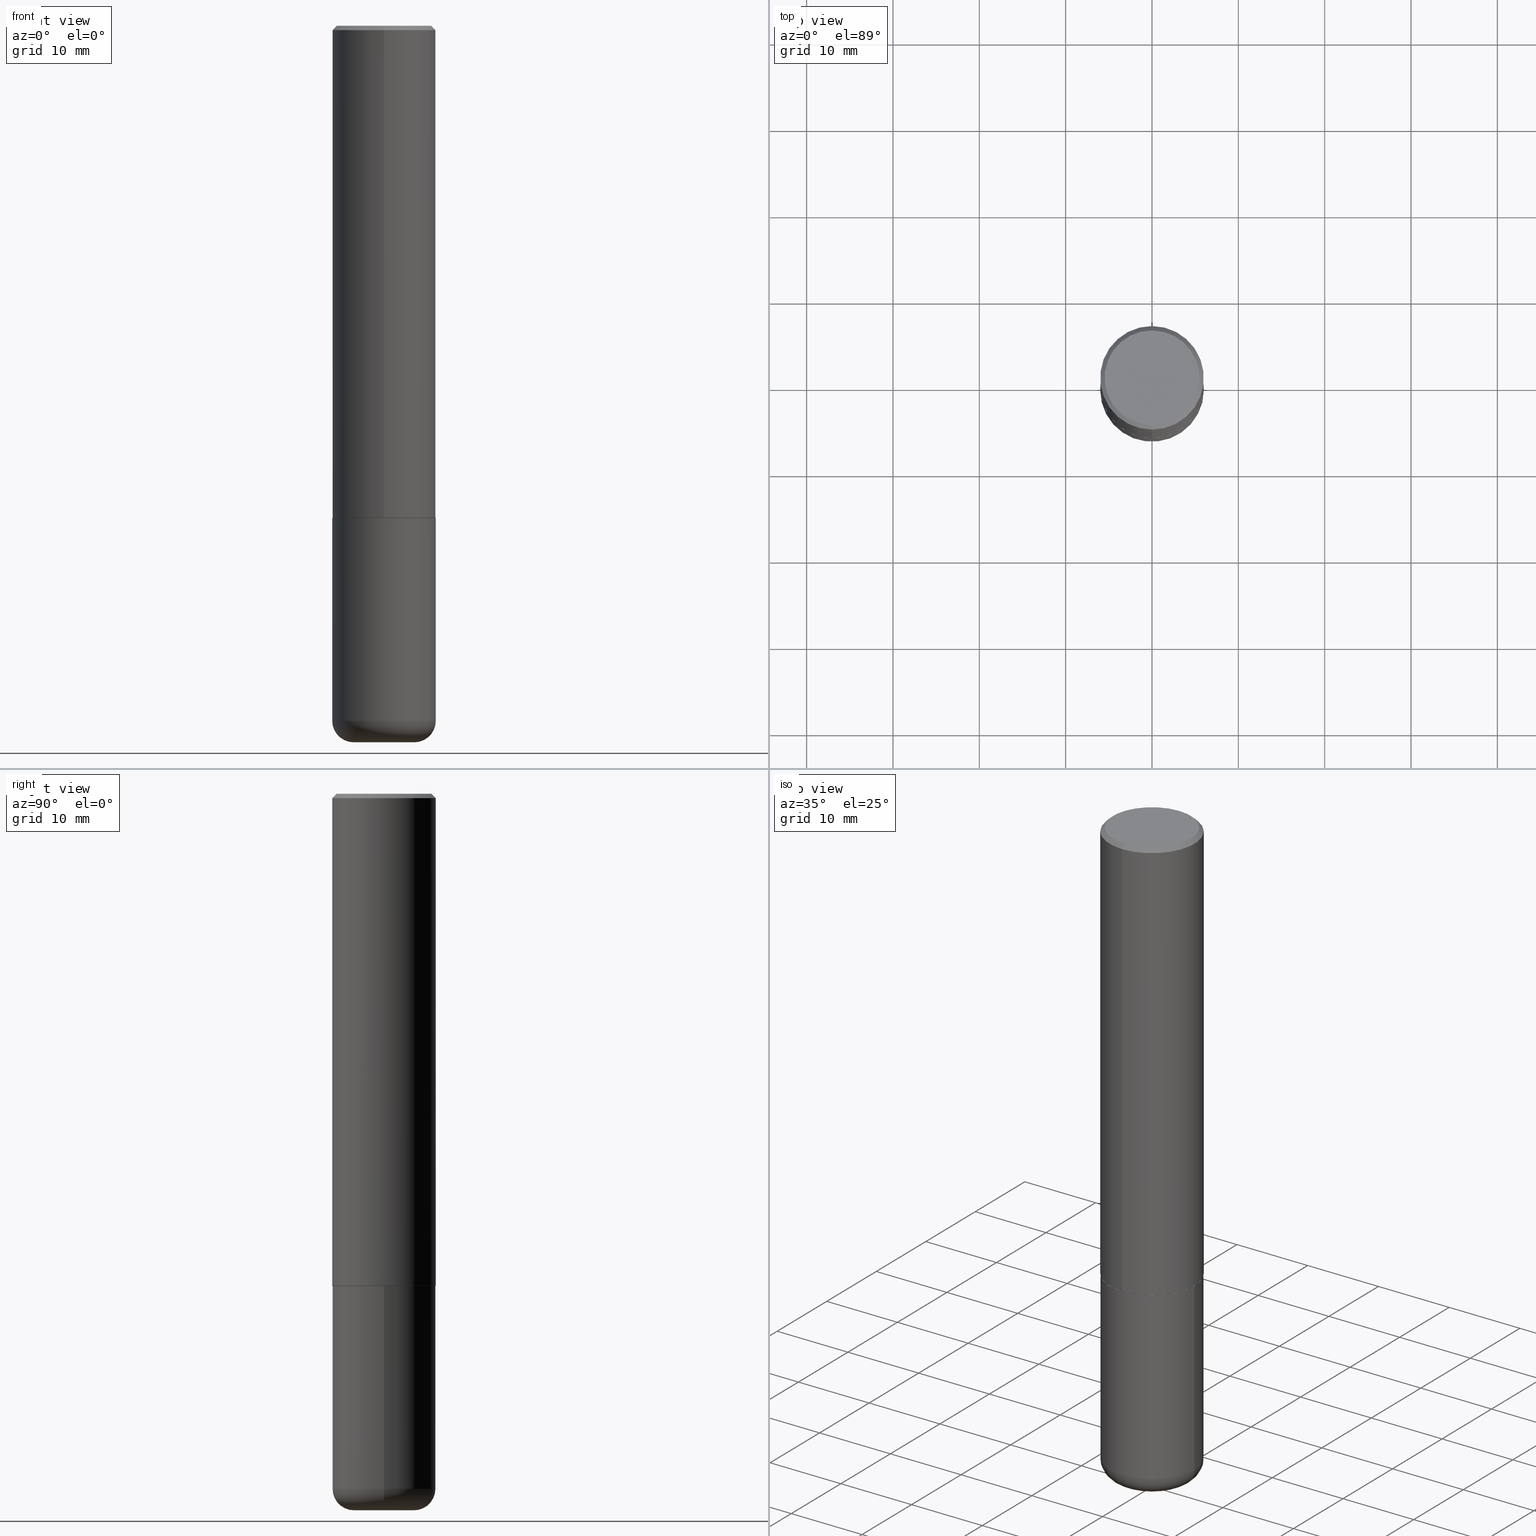
[diagram: canonical four-view strip — front | top / right | iso, engineering-drawing reading convention]
A machine part, canonical four-view strip (front | top / right | iso — engineering-drawing reading convention). The complete STEP part file that produces these views, byte-faithful:
ISO-10303-21;
HEADER;
FILE_DESCRIPTION (( 'STEP AP203' ),
    '1' );
FILE_NAME ('47170.STEP',
    '2024-03-06T01:13:15',
    ( '' ),
    ( '' ),
    'SwSTEP 2.0',
    'SolidWorks 2023',
    '' );
FILE_SCHEMA (( 'CONFIG_CONTROL_DESIGN' ));
ENDSEC;

DATA;
#1 = COORDINATED_UNIVERSAL_TIME_OFFSET ( 5, 0, .BEHIND. ) ;
#2 = EDGE_LOOP ( 'NONE', ( #9, #322, #370, #172 ) ) ;
#3 = EDGE_CURVE ( 'NONE', #26, #408, #160, .T. ) ;
#4 = CIRCLE ( 'NONE', #185, 0.09840000000000014013 ) ;
#5 = FACE_OUTER_BOUND ( 'NONE', #232, .T. ) ;
#6 = DATE_AND_TIME ( #164, #304 ) ;
#7 = AXIS2_PLACEMENT_3D ( 'NONE', #327, #117, #329 ) ;
#8 = LOCAL_TIME ( 20, 13, 14.00000000000000000, #166 ) ;
#9 = ORIENTED_EDGE ( 'NONE', *, *, #223, .T. ) ;
#10 = DATE_AND_TIME ( #71, #395 ) ;
#11 = PERSON_AND_ORGANIZATION ( #389, #79 ) ;
#12 = ORIENTED_EDGE ( 'NONE', *, *, #171, .T. ) ;
#13 = EDGE_CURVE ( 'NONE', #233, #282, #202, .T. ) ;
#14 = ORIENTED_EDGE ( 'NONE', *, *, #397, .T. ) ;
#15 = CIRCLE ( 'NONE', #344, 0.2352000000000000202 ) ;
#16 = ORIENTED_EDGE ( 'NONE', *, *, #27, .T. ) ;
#17 = DIRECTION ( 'NONE',  ( -1.000000000000000000, 6.982962677686265922E-15, -4.876176775795935793E-29 ) ) ;
#18 = ORIENTED_EDGE ( 'NONE', *, *, #363, .T. ) ;
#19 = DATE_TIME_ROLE ( 'creation_date' ) ;
#20 = AXIS2_PLACEMENT_3D ( 'NONE', #324, #157, #108 ) ;
#21 = DIRECTION ( 'NONE',  ( -6.982962677686265922E-15, -1.000000000000000000, 3.494732472144603410E-15 ) ) ;
#22 = ORIENTED_EDGE ( 'NONE', *, *, #99, .F. ) ;
#23 = UNCERTAINTY_MEASURE_WITH_UNIT (LENGTH_MEASURE( 1.000000000000000082E-05 ), #383, 'distance_accuracy_value', 'NONE');
#24 = FACE_OUTER_BOUND ( 'NONE', #131, .T. ) ;
#25 = PRODUCT_DEFINITION ( 'UNKNOWN', '', #32, #323 ) ;
#26 = VERTEX_POINT ( 'NONE', #83 ) ;
#27 = EDGE_CURVE ( 'NONE', #85, #408, #326, .T. ) ;
#28 = PLANE ( 'NONE',  #210 ) ;
#29 = EDGE_LOOP ( 'NONE', ( #346, #104, #16, #393 ) ) ;
#30 = CARTESIAN_POINT ( 'NONE',  ( 5.480338671844748839E-29, -7.839034408267561952E-15, -2.243100000000000094 ) ) ;
#31 = AXIS2_PLACEMENT_3D ( 'NONE', #84, #335, #207 ) ;
#32 = PRODUCT_DEFINITION_FORMATION_WITH_SPECIFIED_SOURCE ( 'ANY', '', #86, .NOT_KNOWN. ) ;
#33 = CARTESIAN_POINT ( 'NONE',  ( 1.674749228186611702E-15, 0.2351999999999921653, -2.244100000000000872 ) ) ;
#34 = CARTESIAN_POINT ( 'NONE',  ( 5.487876547960065873E-29, -7.835233272497903917E-15, -2.244100000000000428 ) ) ;
#35 = VECTOR ( 'NONE', #188, 39.37007874015748143 ) ;
#36 = CARTESIAN_POINT ( 'NONE',  ( 0.1378000000000000058, -1.237136582792291392E-14, -3.267700000000000049 ) ) ;
#37 = CARTESIAN_POINT ( 'NONE',  ( 7.750424287442554569E-29, -1.106555180719558034E-14, -3.169299999999999784 ) ) ;
#38 = APPROVAL ( #102, 'UNSPECIFIED' ) ;
#39 = ORIENTED_EDGE ( 'NONE', *, *, #97, .T. ) ;
#40 = PERSON_AND_ORGANIZATION ( #389, #79 ) ;
#41 = CALENDAR_DATE ( 2024, 5, 3 ) ;
#42 = CIRCLE ( 'NONE', #287, 0.2362000000000000210 ) ;
#43 = ORIENTED_EDGE ( 'NONE', *, *, #171, .F. ) ;
#44 = COORDINATED_UNIVERSAL_TIME_OFFSET ( 5, 0, .BEHIND. ) ;
#45 = EDGE_CURVE ( 'NONE', #73, #118, #4, .T. ) ;
#46 = CYLINDRICAL_SURFACE ( 'NONE', #315, 0.2361999999999999933 ) ;
#47 = CARTESIAN_POINT ( 'NONE',  ( 0.2361999999999999933, -1.649375784469496131E-15, 1.151752954443000088E-29 ) ) ;
#48 = MANIFOLD_SOLID_BREP ( 'Body-Move/Copy2[1]', #359 ) ;
#49 = DIRECTION ( 'NONE',  ( -6.982962677686266711E-15, -1.000000000000000000, 3.491481338843145583E-15 ) ) ;
#50 = ORIENTED_EDGE ( 'NONE', *, *, #129, .T. ) ;
#51 = CIRCLE ( 'NONE', #120, 0.1378000000000000058 ) ;
#52 = CC_DESIGN_APPROVAL ( #38, ( #25 ) ) ;
#53 = DIRECTION ( 'NONE',  ( 6.982962677686265922E-15, 1.000000000000000000, -3.494732472144603016E-15 ) ) ;
#54 = ADVANCED_FACE ( 'NONE', ( #174 ), #290, .T. ) ;
#55 = ORIENTED_EDGE ( 'NONE', *, *, #59, .F. ) ;
#56 = APPLICATION_CONTEXT ( 'configuration controlled 3d designs of mechanical parts and assemblies' ) ;
#57 = DIRECTION ( 'NONE',  ( -6.982962677686265922E-15, -1.000000000000000000, 3.469747663417773058E-15 ) ) ;
#58 = DIMENSIONAL_EXPONENTS ( 1.000000000000000000, 0.000000000000000000, 0.000000000000000000, 0.000000000000000000, 0.000000000000000000, 0.000000000000000000, 0.000000000000000000 ) ;
#59 = EDGE_CURVE ( 'NONE', #358, #390, #15, .T. ) ;
#60 = ORIENTED_EDGE ( 'NONE', *, *, #273, .T. ) ;
#61 = DIRECTION ( 'NONE',  ( -6.982962677686265922E-15, -1.000000000000000000, 3.469747663417773058E-15 ) ) ;
#62 = FACE_OUTER_BOUND ( 'NONE', #328, .T. ) ;
#63 = CIRCLE ( 'NONE', #257, 0.2362000000000002709 ) ;
#64 = CC_DESIGN_APPROVAL ( #193, ( #186 ) ) ;
#65 = LINE ( 'NONE', #418, #35 ) ;
#66 = DIRECTION ( 'NONE',  ( 2.443198551934710321E-29, -3.494732472144603410E-15, -1.000000000000000000 ) ) ;
#67 = ADVANCED_BREP_SHAPE_REPRESENTATION ( '47170', ( #48, #309, #340 ), #165 ) ;
#68 = AXIS2_PLACEMENT_3D ( 'NONE', #146, #270, #123 ) ;
#69 = CARTESIAN_POINT ( 'NONE',  ( 4.886397103869442398E-31, -6.989464944289237832E-17, -0.02000000000000009062 ) ) ;
#70 = DIRECTION ( 'NONE',  ( 0.000000000000000000, 0.000000000000000000, 1.000000000000000000 ) ) ;
#71 = CALENDAR_DATE ( 2024, 5, 3 ) ;
#72 = CIRCLE ( 'NONE', #31, 0.2352000000000000202 ) ;
#73 = VERTEX_POINT ( 'NONE', #216 ) ;
#74 = MECHANICAL_CONTEXT ( 'NONE', #291, 'mechanical' ) ;
#75 = ORIENTED_EDGE ( 'NONE', *, *, #223, .F. ) ;
#76 = VERTEX_POINT ( 'NONE', #155 ) ;
#77 = AXIS2_PLACEMENT_3D ( 'NONE', #37, #100, #382 ) ;
#78 = CARTESIAN_POINT ( 'NONE',  ( 7.750424287442554569E-29, -1.106555180719558034E-14, -3.169299999999999784 ) ) ;
#79 = ORGANIZATION ( 'UNSPECIFIED', 'UNSPECIFIED', '' ) ;
#80 = PRODUCT_DEFINITION_SHAPE ( 'NONE', 'NONE',  #25 ) ;
#81 = CARTESIAN_POINT ( 'NONE',  ( 7.991058417971171713E-29, -1.140911357093774644E-14, -3.267700000000000049 ) ) ;
#82 = DIRECTION ( 'NONE',  ( -2.443198551934710321E-29, 3.494732472144603410E-15, 1.000000000000000000 ) ) ;
#83 = CARTESIAN_POINT ( 'NONE',  ( -0.2362000000000000766, -7.772090597981385734E-15, -2.244100000000000428 ) ) ;
#84 = CARTESIAN_POINT ( 'NONE',  ( 5.482781870396684000E-29, -7.842529140739704038E-15, -2.244100000000000428 ) ) ;
#85 = VERTEX_POINT ( 'NONE', #347 ) ;
#86 = PRODUCT ( '47170', '47170', '', ( #74 ) ) ;
#87 = CARTESIAN_POINT ( 'NONE',  ( -1.620449627073635079E-15, -0.2362000000000000766, -0.01999999999999926489 ) ) ;
#88 = EDGE_CURVE ( 'NONE', #85, #118, #360, .T. ) ;
#89 = ORIENTED_EDGE ( 'NONE', *, *, #397, .F. ) ;
#90 = CIRCLE ( 'NONE', #139, 0.2361999999999999933 ) ;
#91 = PLANE ( 'NONE',  #197 ) ;
#92 = ORIENTED_EDGE ( 'NONE', *, *, #45, .T. ) ;
#93 = CARTESIAN_POINT ( 'NONE',  ( 1.509716530915772690E-15, 0.2162000000000002808, -9.024733938762408486E-16 ) ) ;
#94 = DIRECTION ( 'NONE',  ( 6.982962677686265922E-15, 1.000000000000000000, -3.487819265831411744E-15 ) ) ;
#95 = CARTESIAN_POINT ( 'NONE',  ( 7.750424287442554569E-29, -1.106555180719558034E-14, -3.169299999999999784 ) ) ;
#96 = AXIS2_PLACEMENT_3D ( 'NONE', #362, #173, #241 ) ;
#97 = EDGE_CURVE ( 'NONE', #353, #73, #385, .T. ) ;
#98 = DIRECTION ( 'NONE',  ( -4.937700262164969294E-15, -0.7071067811866054154, 0.7071067811864896191 ) ) ;
#99 = EDGE_CURVE ( 'NONE', #73, #353, #51, .T. ) ;
#100 = DIRECTION ( 'NONE',  ( -2.445468806185136597E-29, 3.491481338843145583E-15, 1.000000000000000000 ) ) ;
#101 = ORIENTED_EDGE ( 'NONE', *, *, #198, .F. ) ;
#102 = APPROVAL_STATUS ( 'not_yet_approved' ) ;
#103 = PERSON_AND_ORGANIZATION ( #389, #79 ) ;
#104 = ORIENTED_EDGE ( 'NONE', *, *, #365, .T. ) ;
#105 = CC_DESIGN_PERSON_AND_ORGANIZATION_ASSIGNMENT ( #103, #416, ( #32 ) ) ;
#106 = DATE_TIME_ROLE ( 'classification_date' ) ;
#107 = DIRECTION ( 'NONE',  ( 7.105427357601001859E-15, 1.000000000000000000, -3.491481338843145583E-15 ) ) ;
#108 = DIRECTION ( 'NONE',  ( -6.982962677686265922E-15, -1.000000000000000000, 3.494732472144603016E-15 ) ) ;
#109 = AXIS2_PLACEMENT_3D ( 'NONE', #145, #152, #21 ) ;
#110 = DIRECTION ( 'NONE',  ( -6.982962677686265922E-15, -1.000000000000000000, 3.487819265831411744E-15 ) ) ;
#111 = DIRECTION ( 'NONE',  ( -6.982962677686265922E-15, -1.000000000000000000, 3.484499991918702719E-15 ) ) ;
#112 = CC_DESIGN_PERSON_AND_ORGANIZATION_ASSIGNMENT ( #40, #387, ( #86 ) ) ;
#113 = ORIENTED_EDGE ( 'NONE', *, *, #201, .T. ) ;
#114 = FACE_OUTER_BOUND ( 'NONE', #29, .T. ) ;
#115 = ADVANCED_FACE ( 'NONE', ( #5 ), #133, .T. ) ;
#116 = EDGE_LOOP ( 'NONE', ( #18, #227 ) ) ;
#117 = DIRECTION ( 'NONE',  ( -2.445468806185136597E-29, 3.491481338843145583E-15, 1.000000000000000000 ) ) ;
#118 = VERTEX_POINT ( 'NONE', #366 ) ;
#119 = AXIS2_PLACEMENT_3D ( 'NONE', #151, #247, #367 ) ;
#120 = AXIS2_PLACEMENT_3D ( 'NONE', #332, #224, #381 ) ;
#121 = DIRECTION ( 'NONE',  ( -4.851104656540954020E-15, -0.7071067811865485719, -0.7071067811865464625 ) ) ;
#122 = FACE_OUTER_BOUND ( 'NONE', #234, .T. ) ;
#123 = DIRECTION ( 'NONE',  ( -1.000000000000000000, 6.982962677686265922E-15, -4.876176775795935793E-29 ) ) ;
#124 = FACE_OUTER_BOUND ( 'NONE', #2, .T. ) ;
#125 = PERSON_AND_ORGANIZATION ( #389, #79 ) ;
#126 = AXIS2_PLACEMENT_3D ( 'NONE', #276, #377, #345 ) ;
#127 = ADVANCED_FACE ( 'NONE', ( #178 ), #46, .T. ) ;
#128 = PERSON_AND_ORGANIZATION ( #389, #79 ) ;
#129 = EDGE_CURVE ( 'NONE', #140, #76, #380, .T. ) ;
#130 = DIRECTION ( 'NONE',  ( -2.443198551934710321E-29, 3.494732472144603410E-15, 1.000000000000000000 ) ) ;
#131 = EDGE_LOOP ( 'NONE', ( #314, #242, #75, #89 ) ) ;
#132 = EDGE_CURVE ( 'NONE', #170, #261, #330, .T. ) ;
#133 = CONICAL_SURFACE ( 'NONE', #394, 0.2361999999999999933, 0.7853981633974463916 ) ;
#134 = APPROVAL_DATE_TIME ( #6, #254 ) ;
#135 = APPROVAL_ROLE ( '' ) ;
#136 = APPROVAL_STATUS ( 'not_yet_approved' ) ;
#137 = ORIENTED_EDGE ( 'NONE', *, *, #88, .T. ) ;
#138 = DIRECTION ( 'NONE',  ( 1.000000000000000000, -6.982962677686265922E-15, 0.000000000000000000 ) ) ;
#139 = AXIS2_PLACEMENT_3D ( 'NONE', #69, #130, #341 ) ;
#140 = VERTEX_POINT ( 'NONE', #243 ) ;
#141 = DATE_AND_TIME ( #320, #8 ) ;
#142 = ORIENTED_EDGE ( 'NONE', *, *, #181, .T. ) ;
#143 = PERSON_AND_ORGANIZATION_ROLE ( 'creator' ) ;
#144 = ADVANCED_FACE ( 'NONE', ( #114 ), #301, .T. ) ;
#145 = CARTESIAN_POINT ( 'NONE',  ( 0.000000000000000000, 0.000000000000000000, 0.000000000000000000 ) ) ;
#146 = CARTESIAN_POINT ( 'NONE',  ( 7.991058417971171713E-29, -1.140911357093774644E-14, -3.267700000000000049 ) ) ;
#147 = CC_DESIGN_APPROVAL ( #254, ( #32 ) ) ;
#148 = FACE_OUTER_BOUND ( 'NONE', #149, .T. ) ;
#149 = EDGE_LOOP ( 'NONE', ( #55, #410 ) ) ;
#150 = CARTESIAN_POINT ( 'NONE',  ( 1.678301941865385582E-15, 0.2361999999999924160, -2.243100000000000982 ) ) ;
#151 = CARTESIAN_POINT ( 'NONE',  ( 5.487876547960065873E-29, -7.835233272497903917E-15, -2.244100000000000428 ) ) ;
#152 = DIRECTION ( 'NONE',  ( -2.443198551934710321E-29, 3.494732472144603410E-15, 1.000000000000000000 ) ) ;
#153 = ORIENTED_EDGE ( 'NONE', *, *, #198, .T. ) ;
#154 = AXIS2_PLACEMENT_3D ( 'NONE', #95, #158, #413 ) ;
#155 = CARTESIAN_POINT ( 'NONE',  ( -1.551844647095920733E-15, -0.2162000000000002808, 4.617366936805109079E-16 ) ) ;
#156 = APPROVAL_PERSON_ORGANIZATION ( #125, #254, #256 ) ;
#157 = DIRECTION ( 'NONE',  ( -2.443198551934710321E-29, 3.494732472144603016E-15, 1.000000000000000000 ) ) ;
#158 = DIRECTION ( 'NONE',  ( -2.445468806185136597E-29, 3.491481338843145583E-15, 1.000000000000000000 ) ) ;
#159 = CARTESIAN_POINT ( 'NONE',  ( 4.886397103869442398E-31, -6.989464944289237832E-17, -0.02000000000000009062 ) ) ;
#160 = CIRCLE ( 'NONE', #119, 0.2362000000000000210 ) ;
#161 = CARTESIAN_POINT ( 'NONE',  ( 7.178715118017931868E-45, -1.026837905226585320E-30, -2.938244667971532280E-16 ) ) ;
#162 = VECTOR ( 'NONE', #268, 39.37007874015748143 ) ;
#163 =( NAMED_UNIT ( * ) PLANE_ANGLE_UNIT ( ) SI_UNIT ( $, .RADIAN. ) );
#164 = CALENDAR_DATE ( 2024, 5, 3 ) ;
#165 =( GEOMETRIC_REPRESENTATION_CONTEXT ( 3 ) GLOBAL_UNCERTAINTY_ASSIGNED_CONTEXT ( ( #23 ) ) GLOBAL_UNIT_ASSIGNED_CONTEXT ( ( #383, #163, #357 ) ) REPRESENTATION_CONTEXT ( 'NONE', 'WORKASPACE' ) );
#166 = COORDINATED_UNIVERSAL_TIME_OFFSET ( 5, 0, .BEHIND. ) ;
#167 = ORIENTED_EDGE ( 'NONE', *, *, #129, .F. ) ;
#168 = PERSON_AND_ORGANIZATION ( #389, #79 ) ;
#169 = ADVANCED_FACE ( 'NONE', ( #24 ), #350, .T. ) ;
#170 = VERTEX_POINT ( 'NONE', #150 ) ;
#171 = EDGE_CURVE ( 'NONE', #140, #282, #180, .T. ) ;
#172 = ORIENTED_EDGE ( 'NONE', *, *, #251, .F. ) ;
#173 = DIRECTION ( 'NONE',  ( -2.443198551934710321E-29, 3.494732472144603410E-15, 1.000000000000000000 ) ) ;
#174 = FACE_OUTER_BOUND ( 'NONE', #349, .T. ) ;
#175 = CARTESIAN_POINT ( 'NONE',  ( 5.480338671844748839E-29, -7.839034408267561952E-15, -2.243100000000000094 ) ) ;
#176 = CIRCLE ( 'NONE', #283, 0.2162000000000002808 ) ;
#177 = EDGE_LOOP ( 'NONE', ( #239, #142, #14, #211 ) ) ;
#178 = FACE_OUTER_BOUND ( 'NONE', #331, .T. ) ;
#179 = ORIENTED_EDGE ( 'NONE', *, *, #308, .T. ) ;
#180 = LINE ( 'NONE', #375, #412 ) ;
#181 = EDGE_CURVE ( 'NONE', #390, #358, #72, .T. ) ;
#182 = DIRECTION ( 'NONE',  ( -2.445468806185136877E-29, 3.491481338843145188E-15, 1.000000000000000000 ) ) ;
#183 = DIRECTION ( 'NONE',  ( 2.443198551934710321E-29, -3.494732472144603016E-15, -1.000000000000000000 ) ) ;
#184 = VECTOR ( 'NONE', #182, 39.37007874015748143 ) ;
#185 = AXIS2_PLACEMENT_3D ( 'NONE', #208, #107, #373 ) ;
#186 = SECURITY_CLASSIFICATION ( '', '', #196 ) ;
#187 = DIRECTION ( 'NONE',  ( 1.000000000000000000, -6.982962677686268288E-15, 0.000000000000000000 ) ) ;
#188 = DIRECTION ( 'NONE',  ( -2.445468806185136877E-29, 3.491481338843145188E-15, 1.000000000000000000 ) ) ;
#189 = DIRECTION ( 'NONE',  ( -2.445468806185136597E-29, 3.491481338843145583E-15, 1.000000000000000000 ) ) ;
#190 = DIRECTION ( 'NONE',  ( 1.000000000000000000, -6.982962677686269077E-15, 4.883557194083113462E-29 ) ) ;
#191 = CARTESIAN_POINT ( 'NONE',  ( -1.649375784469443080E-15, -0.2362000000000081257, -2.243099999999999206 ) ) ;
#192 = AXIS2_PLACEMENT_3D ( 'NONE', #342, #306, #190 ) ;
#193 = APPROVAL ( #136, 'UNSPECIFIED' ) ;
#194 = FACE_OUTER_BOUND ( 'NONE', #298, .T. ) ;
#195 = ORIENTED_EDGE ( 'NONE', *, *, #308, .F. ) ;
#196 = SECURITY_CLASSIFICATION_LEVEL ( 'unclassified' ) ;
#197 = AXIS2_PLACEMENT_3D ( 'NONE', #404, #213, #17 ) ;
#198 = EDGE_CURVE ( 'NONE', #353, #85, #231, .T. ) ;
#199 = ORIENTED_EDGE ( 'NONE', *, *, #99, .T. ) ;
#200 = CARTESIAN_POINT ( 'NONE',  ( 0.000000000000000000, 0.000000000000000000, 0.000000000000000000 ) ) ;
#201 = EDGE_CURVE ( 'NONE', #76, #233, #272, .T. ) ;
#202 = CIRCLE ( 'NONE', #402, 0.2361999999999999933 ) ;
#203 = ORIENTED_EDGE ( 'NONE', *, *, #13, .T. ) ;
#204 = DIRECTION ( 'NONE',  ( 2.443198551934710321E-29, -3.494732472144603410E-15, -1.000000000000000000 ) ) ;
#205 = DIRECTION ( 'NONE',  ( 1.000000000000000000, -6.982962677686272233E-15, 0.000000000000000000 ) ) ;
#206 = ORIENTED_EDGE ( 'NONE', *, *, #319, .F. ) ;
#207 = DIRECTION ( 'NONE',  ( -6.982962677686265922E-15, -1.000000000000000000, 3.484499991918702719E-15 ) ) ;
#208 = CARTESIAN_POINT ( 'NONE',  ( -0.1378000000000000058, -1.008642391731816283E-14, -3.169299999999999784 ) ) ;
#209 = DIRECTION ( 'NONE',  ( -2.445468806185136597E-29, 3.491481338843145583E-15, 1.000000000000000000 ) ) ;
#210 = AXIS2_PLACEMENT_3D ( 'NONE', #93, #183, #53 ) ;
#211 = ORIENTED_EDGE ( 'NONE', *, *, #132, .F. ) ;
#212 = AXIS2_PLACEMENT_3D ( 'NONE', #159, #66, #94 ) ;
#213 = DIRECTION ( 'NONE',  ( 2.438088387897960049E-29, -3.491481338843145188E-15, -1.000000000000000000 ) ) ;
#214 = ADVANCED_FACE ( 'NONE', ( #245 ), #28, .F. ) ;
#215 = DIRECTION ( 'NONE',  ( -2.443198551934710321E-29, 3.494732472144603410E-15, 1.000000000000000000 ) ) ;
#216 = CARTESIAN_POINT ( 'NONE',  ( -0.1378000000000000058, -9.908617773195276440E-15, -3.267700000000000049 ) ) ;
#217 = CYLINDRICAL_SURFACE ( 'NONE', #109, 0.2362000000000001321 ) ;
#218 = CARTESIAN_POINT ( 'NONE',  ( 1.649375784469496525E-15, 0.2361999999999999378, -0.02000000000000091288 ) ) ;
#219 = ADVANCED_FACE ( 'NONE', ( #293 ), #217, .T. ) ;
#220 = VECTOR ( 'NONE', #98, 39.37007874015748143 ) ;
#221 = ADVANCED_FACE ( 'NONE', ( #371 ), #91, .F. ) ;
#222 =( LENGTH_UNIT ( ) NAMED_UNIT ( * ) SI_UNIT ( $, .METRE. ) );
#223 = EDGE_CURVE ( 'NONE', #261, #170, #63, .T. ) ;
#224 = DIRECTION ( 'NONE',  ( -2.445468806185136597E-29, 3.491481338843145583E-15, 1.000000000000000000 ) ) ;
#225 = DIRECTION ( 'NONE',  ( -2.443198551934710321E-29, 3.494732472144603410E-15, 1.000000000000000000 ) ) ;
#226 = CC_DESIGN_PERSON_AND_ORGANIZATION_ASSIGNMENT ( #128, #253, ( #186 ) ) ;
#227 = ORIENTED_EDGE ( 'NONE', *, *, #3, .T. ) ;
#228 = COORDINATED_UNIVERSAL_TIME_OFFSET ( 5, 0, .BEHIND. ) ;
#229 = PERSON_AND_ORGANIZATION ( #389, #79 ) ;
#230 = ADVANCED_FACE ( 'NONE', ( #148 ), #400, .F. ) ;
#231 = CIRCLE ( 'NONE', #236, 0.09840000000000014013 ) ;
#232 = EDGE_LOOP ( 'NONE', ( #195, #113, #203, #43 ) ) ;
#233 = VERTEX_POINT ( 'NONE', #87 ) ;
#234 = EDGE_LOOP ( 'NONE', ( #356, #167, #12, #406 ) ) ;
#235 = DIRECTION ( 'NONE',  ( 6.982962677686265922E-15, 1.000000000000000000, -3.487819265831411744E-15 ) ) ;
#236 = AXIS2_PLACEMENT_3D ( 'NONE', #299, #49, #205 ) ;
#237 = DIRECTION ( 'NONE',  ( 1.000000000000000000, -6.982962677686265133E-15, 0.000000000000000000 ) ) ;
#238 = LOCAL_TIME ( 20, 13, 14.00000000000000000, #266 ) ;
#239 = ORIENTED_EDGE ( 'NONE', *, *, #258, .F. ) ;
#240 = CALENDAR_DATE ( 2024, 5, 3 ) ;
#241 = DIRECTION ( 'NONE',  ( -6.982962677686265922E-15, -1.000000000000000000, 3.494732472144603410E-15 ) ) ;
#242 = ORIENTED_EDGE ( 'NONE', *, *, #258, .T. ) ;
#243 = CARTESIAN_POINT ( 'NONE',  ( 1.579546157692634608E-15, 0.2162000000000002808, -1.049385627274817561E-15 ) ) ;
#244 = ORIENTED_EDGE ( 'NONE', *, *, #246, .F. ) ;
#245 = FACE_OUTER_BOUND ( 'NONE', #336, .T. ) ;
#246 = EDGE_CURVE ( 'NONE', #170, #282, #248, .T. ) ;
#247 = DIRECTION ( 'NONE',  ( -2.445468806185136597E-29, 3.491481338843145583E-15, 1.000000000000000000 ) ) ;
#248 = LINE ( 'NONE', #271, #162 ) ;
#249 = LINE ( 'NONE', #252, #310 ) ;
#250 = CARTESIAN_POINT ( 'NONE',  ( 5.482781870396684000E-29, -7.842529140739704038E-15, -2.244100000000000428 ) ) ;
#251 = EDGE_CURVE ( 'NONE', #261, #233, #407, .T. ) ;
#252 = CARTESIAN_POINT ( 'NONE',  ( 1.671196514507810409E-15, 0.2351999999999921653, -2.244100000000000872 ) ) ;
#253 = PERSON_AND_ORGANIZATION_ROLE ( 'classification_officer' ) ;
#254 = APPROVAL ( #388, 'UNSPECIFIED' ) ;
#255 = DIRECTION ( 'NONE',  ( -2.443198551934710321E-29, 3.494732472144603410E-15, 1.000000000000000000 ) ) ;
#256 = APPROVAL_ROLE ( '' ) ;
#257 = AXIS2_PLACEMENT_3D ( 'NONE', #30, #274, #61 ) ;
#258 = EDGE_CURVE ( 'NONE', #390, #170, #249, .T. ) ;
#259 = APPROVAL_DATE_TIME ( #10, #38 ) ;
#260 = DATE_AND_TIME ( #41, #238 ) ;
#261 = VERTEX_POINT ( 'NONE', #191 ) ;
#262 = ADVANCED_FACE ( 'NONE', ( #124 ), #278, .T. ) ;
#263 = TOROIDAL_SURFACE ( 'NONE', #154, 0.1378000000000000058, 0.09840000000000012625 ) ;
#264 = CC_DESIGN_SECURITY_CLASSIFICATION ( #186, ( #32 ) ) ;
#265 = CC_DESIGN_DATE_AND_TIME_ASSIGNMENT ( #141, #106, ( #186 ) ) ;
#266 = COORDINATED_UNIVERSAL_TIME_OFFSET ( 5, 0, .BEHIND. ) ;
#267 = ORIENTED_EDGE ( 'NONE', *, *, #97, .F. ) ;
#268 = DIRECTION ( 'NONE',  ( -2.443198551934710321E-29, 3.494732472144603016E-15, 1.000000000000000000 ) ) ;
#269 = AXIS2_PLACEMENT_3D ( 'NONE', #78, #189, #237 ) ;
#270 = DIRECTION ( 'NONE',  ( 2.438088387897960049E-29, -3.491481338843145188E-15, -1.000000000000000000 ) ) ;
#271 = CARTESIAN_POINT ( 'NONE',  ( 1.678301941865357380E-15, 0.2362000000000001321, -8.254558099205557624E-16 ) ) ;
#272 = LINE ( 'NONE', #409, #275 ) ;
#273 = EDGE_CURVE ( 'NONE', #118, #26, #65, .T. ) ;
#274 = DIRECTION ( 'NONE',  ( -2.443198551934710321E-29, 3.494732472144603410E-15, 1.000000000000000000 ) ) ;
#275 = VECTOR ( 'NONE', #121, 39.37007874015748143 ) ;
#276 = CARTESIAN_POINT ( 'NONE',  ( 0.000000000000000000, 0.000000000000000000, 0.000000000000000000 ) ) ;
#277 = CARTESIAN_POINT ( 'NONE',  ( -1.642392821791755093E-15, -0.2352000000000078750, -2.244099999999999540 ) ) ;
#278 = CYLINDRICAL_SURFACE ( 'NONE', #126, 0.2362000000000001321 ) ;
#279 = APPROVAL_PERSON_ORGANIZATION ( #11, #193, #392 ) ;
#280 = DIRECTION ( 'NONE',  ( -6.982962677686265922E-15, -1.000000000000000000, 3.494732472144603410E-15 ) ) ;
#281 = FACE_OUTER_BOUND ( 'NONE', #177, .T. ) ;
#282 = VERTEX_POINT ( 'NONE', #218 ) ;
#283 = AXIS2_PLACEMENT_3D ( 'NONE', #161, #225, #280 ) ;
#284 = CARTESIAN_POINT ( 'NONE',  ( 5.482781870396684000E-29, -7.842529140739704038E-15, -2.244100000000000428 ) ) ;
#285 = ORIENTED_EDGE ( 'NONE', *, *, #132, .T. ) ;
#286 = CLOSED_SHELL ( 'NONE', ( #169, #262, #115, #396, #219, #368, #230, #214 ) ) ;
#287 = AXIS2_PLACEMENT_3D ( 'NONE', #34, #343, #187 ) ;
#288 = ORIENTED_EDGE ( 'NONE', *, *, #45, .F. ) ;
#289 = CARTESIAN_POINT ( 'NONE',  ( 5.482781870396684000E-29, -7.842529140739704038E-15, -2.244100000000000428 ) ) ;
#290 = PLANE ( 'NONE',  #68 ) ;
#291 = APPLICATION_CONTEXT ( 'configuration controlled 3d designs of mechanical parts and assemblies' ) ;
#292 = DATE_AND_TIME ( #240, #386 ) ;
#293 = FACE_OUTER_BOUND ( 'NONE', #364, .T. ) ;
#294 = VECTOR ( 'NONE', #305, 39.37007874015748143 ) ;
#295 = ORIENTED_EDGE ( 'NONE', *, *, #251, .T. ) ;
#296 = DIRECTION ( 'NONE',  ( -2.443198551934710321E-29, 3.494732472144603410E-15, 1.000000000000000000 ) ) ;
#297 = CARTESIAN_POINT ( 'NONE',  ( 4.886397103869442398E-31, -6.989464944289237832E-17, -0.02000000000000009062 ) ) ;
#298 = EDGE_LOOP ( 'NONE', ( #39, #92, #300, #101 ) ) ;
#299 = CARTESIAN_POINT ( 'NONE',  ( 0.1378000000000000058, -1.202780406418074782E-14, -3.169299999999999784 ) ) ;
#300 = ORIENTED_EDGE ( 'NONE', *, *, #88, .F. ) ;
#301 = CYLINDRICAL_SURFACE ( 'NONE', #7, 0.2361999999999999933 ) ;
#302 = AXIS2_PLACEMENT_3D ( 'NONE', #81, #376, #138 ) ;
#303 = CONICAL_SURFACE ( 'NONE', #316, 0.2352000000000000202, 0.7853981633975336552 ) ;
#304 = LOCAL_TIME ( 20, 13, 14.00000000000000000, #1 ) ;
#305 = DIRECTION ( 'NONE',  ( -2.443198551934710321E-29, 3.494732472144603016E-15, 1.000000000000000000 ) ) ;
#306 = DIRECTION ( 'NONE',  ( -2.445468806185136597E-29, 3.491481338843145583E-15, 1.000000000000000000 ) ) ;
#307 = CARTESIAN_POINT ( 'NONE',  ( 0.2362000000000000210, -9.484609056967400443E-15, -2.244100000000000428 ) ) ;
#308 = EDGE_CURVE ( 'NONE', #76, #140, #176, .T. ) ;
#309 = MANIFOLD_SOLID_BREP ( 'Body-Move/Copy2[2]', #286 ) ;
#310 = VECTOR ( 'NONE', #384, 39.37007874015748143 ) ;
#311 = CARTESIAN_POINT ( 'NONE',  ( -1.649375784469496920E-15, -0.2362000000000001321, 8.254558099205557624E-16 ) ) ;
#312 = ADVANCED_FACE ( 'NONE', ( #62 ), #263, .T. ) ;
#313 = CARTESIAN_POINT ( 'NONE',  ( -1.642392821791755093E-15, -0.2352000000000078750, -2.244099999999999540 ) ) ;
#314 = ORIENTED_EDGE ( 'NONE', *, *, #59, .T. ) ;
#315 = AXIS2_PLACEMENT_3D ( 'NONE', #411, #209, #333 ) ;
#316 = AXIS2_PLACEMENT_3D ( 'NONE', #250, #255, #378 ) ;
#317 = APPLICATION_PROTOCOL_DEFINITION ( 'international standard', 'config_control_design', 1994, #291 ) ;
#318 = ORIENTED_EDGE ( 'NONE', *, *, #27, .F. ) ;
#319 = EDGE_CURVE ( 'NONE', #282, #233, #90, .T. ) ;
#320 = CALENDAR_DATE ( 2024, 5, 3 ) ;
#321 = DIRECTION ( 'NONE',  ( 1.000000000000000000, 0.000000000000000000, 0.000000000000000000 ) ) ;
#322 = ORIENTED_EDGE ( 'NONE', *, *, #246, .T. ) ;
#323 = DESIGN_CONTEXT ( 'detailed design', #56, 'design' ) ;
#324 = CARTESIAN_POINT ( 'NONE',  ( 5.482781870396684000E-29, -7.842529140739704038E-15, -2.244100000000000428 ) ) ;
#325 = PRODUCT_RELATED_PRODUCT_CATEGORY ( 'detail', '', ( #86 ) ) ;
#326 = LINE ( 'NONE', #47, #184 ) ;
#327 = CARTESIAN_POINT ( 'NONE',  ( 0.000000000000000000, 0.000000000000000000, 0.000000000000000000 ) ) ;
#328 = EDGE_LOOP ( 'NONE', ( #288, #199, #153, #401 ) ) ;
#329 = DIRECTION ( 'NONE',  ( 1.000000000000000000, -6.982962677686266711E-15, 4.876176775795936353E-29 ) ) ;
#330 = CIRCLE ( 'NONE', #403, 0.2362000000000002709 ) ;
#331 = EDGE_LOOP ( 'NONE', ( #137, #60, #399, #318 ) ) ;
#332 = CARTESIAN_POINT ( 'NONE',  ( 7.991058417971171713E-29, -1.140911357093774644E-14, -3.267700000000000049 ) ) ;
#333 = DIRECTION ( 'NONE',  ( 1.000000000000000000, -6.982962677686266711E-15, 4.876176775795936353E-29 ) ) ;
#334 = CARTESIAN_POINT ( 'NONE',  ( 4.886397103869442398E-31, -6.989464944289237832E-17, -0.02000000000000009062 ) ) ;
#335 = DIRECTION ( 'NONE',  ( -2.443198551934710321E-29, 3.494732472144603410E-15, 1.000000000000000000 ) ) ;
#336 = EDGE_LOOP ( 'NONE', ( #50, #179 ) ) ;
#337 = LINE ( 'NONE', #277, #220 ) ;
#338 = DIRECTION ( 'NONE',  ( -6.982962677686265922E-15, -1.000000000000000000, 3.484499991918702719E-15 ) ) ;
#339 = CIRCLE ( 'NONE', #77, 0.2361999999999999933 ) ;
#340 = AXIS2_PLACEMENT_3D ( 'NONE', #200, #70, #321 ) ;
#341 = DIRECTION ( 'NONE',  ( -6.982962677686265922E-15, -1.000000000000000000, 3.487819265831411744E-15 ) ) ;
#342 = CARTESIAN_POINT ( 'NONE',  ( 7.750424287442554569E-29, -1.106555180719558034E-14, -3.169299999999999784 ) ) ;
#343 = DIRECTION ( 'NONE',  ( -2.445468806185136597E-29, 3.491481338843145583E-15, 1.000000000000000000 ) ) ;
#344 = AXIS2_PLACEMENT_3D ( 'NONE', #284, #398, #338 ) ;
#345 = DIRECTION ( 'NONE',  ( -6.982962677686265922E-15, -1.000000000000000000, 3.494732472144603410E-15 ) ) ;
#346 = ORIENTED_EDGE ( 'NONE', *, *, #273, .F. ) ;
#347 = CARTESIAN_POINT ( 'NONE',  ( 0.2362000000000000766, -1.271492759166507844E-14, -3.169299999999999784 ) ) ;
#348 = PERSON_AND_ORGANIZATION_ROLE ( 'design_supplier' ) ;
#349 = EDGE_LOOP ( 'NONE', ( #267, #22 ) ) ;
#350 = CONICAL_SURFACE ( 'NONE', #414, 0.2352000000000000202, 0.7853981633975336552 ) ;
#351 = APPLICATION_PROTOCOL_DEFINITION ( 'international standard', 'config_control_design', 1994, #56 ) ;
#352 = SHAPE_DEFINITION_REPRESENTATION ( #80, #67 ) ;
#353 = VERTEX_POINT ( 'NONE', #36 ) ;
#354 = CC_DESIGN_DATE_AND_TIME_ASSIGNMENT ( #292, #19, ( #25 ) ) ;
#355 = ADVANCED_FACE ( 'NONE', ( #194 ), #372, .T. ) ;
#356 = ORIENTED_EDGE ( 'NONE', *, *, #201, .F. ) ;
#357 =( NAMED_UNIT ( * ) SI_UNIT ( $, .STERADIAN. ) SOLID_ANGLE_UNIT ( ) );
#358 = VERTEX_POINT ( 'NONE', #313 ) ;
#359 = CLOSED_SHELL ( 'NONE', ( #127, #355, #221, #144, #312, #54 ) ) ;
#360 = CIRCLE ( 'NONE', #269, 0.2361999999999999933 ) ;
#361 = CONICAL_SURFACE ( 'NONE', #212, 0.2361999999999999933, 0.7853981633974463916 ) ;
#362 = CARTESIAN_POINT ( 'NONE',  ( 7.178715118017931868E-45, -1.026837905226585320E-30, -2.938244667971532280E-16 ) ) ;
#363 = EDGE_CURVE ( 'NONE', #408, #26, #42, .T. ) ;
#364 = EDGE_LOOP ( 'NONE', ( #244, #285, #295, #206 ) ) ;
#365 = EDGE_CURVE ( 'NONE', #118, #85, #339, .T. ) ;
#366 = CARTESIAN_POINT ( 'NONE',  ( -0.2362000000000000766, -9.387249865330223945E-15, -3.169299999999999784 ) ) ;
#367 = DIRECTION ( 'NONE',  ( 1.000000000000000000, -6.982962677686268288E-15, 0.000000000000000000 ) ) ;
#368 = ADVANCED_FACE ( 'NONE', ( #281 ), #303, .T. ) ;
#369 = DIRECTION ( 'NONE',  ( 4.937700262164537787E-15, 0.7071067811865436870, -0.7071067811865513475 ) ) ;
#370 = ORIENTED_EDGE ( 'NONE', *, *, #13, .F. ) ;
#371 = FACE_OUTER_BOUND ( 'NONE', #116, .T. ) ;
#372 = TOROIDAL_SURFACE ( 'NONE', #192, 0.1378000000000000058, 0.09840000000000012625 ) ;
#373 = DIRECTION ( 'NONE',  ( -1.000000000000000000, 7.105427357601008170E-15, 0.000000000000000000 ) ) ;
#374 = CC_DESIGN_PERSON_AND_ORGANIZATION_ASSIGNMENT ( #229, #348, ( #32 ) ) ;
#375 = CARTESIAN_POINT ( 'NONE',  ( 1.649375784469496525E-15, 0.2361999999999999378, -0.02000000000000091288 ) ) ;
#376 = DIRECTION ( 'NONE',  ( -2.445468806185136597E-29, 3.491481338843145583E-15, 1.000000000000000000 ) ) ;
#377 = DIRECTION ( 'NONE',  ( -2.443198551934710321E-29, 3.494732472144603410E-15, 1.000000000000000000 ) ) ;
#378 = DIRECTION ( 'NONE',  ( -6.982962677686265922E-15, -1.000000000000000000, 3.484499991918702719E-15 ) ) ;
#379 = CC_DESIGN_PERSON_AND_ORGANIZATION_ASSIGNMENT ( #391, #143, ( #25 ) ) ;
#380 = CIRCLE ( 'NONE', #96, 0.2162000000000002808 ) ;
#381 = DIRECTION ( 'NONE',  ( 1.000000000000000000, -6.982962677686265922E-15, 0.000000000000000000 ) ) ;
#382 = DIRECTION ( 'NONE',  ( 1.000000000000000000, -6.982962677686265133E-15, 0.000000000000000000 ) ) ;
#383 =( CONVERSION_BASED_UNIT ( 'INCH', #417 ) LENGTH_UNIT ( ) NAMED_UNIT ( #58 ) );
#384 = DIRECTION ( 'NONE',  ( 5.024295867788490741E-15, 0.7071067811866103003, 0.7071067811864847341 ) ) ;
#385 = CIRCLE ( 'NONE', #302, 0.1378000000000000058 ) ;
#386 = LOCAL_TIME ( 20, 13, 14.00000000000000000, #44 ) ;
#387 = PERSON_AND_ORGANIZATION_ROLE ( 'design_owner' ) ;
#388 = APPROVAL_STATUS ( 'not_yet_approved' ) ;
#389 = PERSON ( 'UNSPECIFIED', 'UNSPECIFIED', 'UNSPECIFIED', ('UNSPECIFIED'), ('UNSPECIFIED'), ('UNSPECIFIED') ) ;
#390 = VERTEX_POINT ( 'NONE', #33 ) ;
#391 = PERSON_AND_ORGANIZATION ( #389, #79 ) ;
#392 = APPROVAL_ROLE ( '' ) ;
#393 = ORIENTED_EDGE ( 'NONE', *, *, #3, .F. ) ;
#394 = AXIS2_PLACEMENT_3D ( 'NONE', #297, #204, #235 ) ;
#395 = LOCAL_TIME ( 20, 13, 14.00000000000000000, #228 ) ;
#396 = ADVANCED_FACE ( 'NONE', ( #122 ), #361, .T. ) ;
#397 = EDGE_CURVE ( 'NONE', #358, #261, #337, .T. ) ;
#398 = DIRECTION ( 'NONE',  ( -2.443198551934710321E-29, 3.494732472144603410E-15, 1.000000000000000000 ) ) ;
#399 = ORIENTED_EDGE ( 'NONE', *, *, #363, .F. ) ;
#400 = PLANE ( 'NONE',  #20 ) ;
#401 = ORIENTED_EDGE ( 'NONE', *, *, #365, .F. ) ;
#402 = AXIS2_PLACEMENT_3D ( 'NONE', #334, #215, #110 ) ;
#403 = AXIS2_PLACEMENT_3D ( 'NONE', #175, #296, #57 ) ;
#404 = CARTESIAN_POINT ( 'NONE',  ( 5.487876547960065873E-29, -7.835233272497903917E-15, -2.244100000000000428 ) ) ;
#405 = APPROVAL_DATE_TIME ( #260, #193 ) ;
#406 = ORIENTED_EDGE ( 'NONE', *, *, #319, .T. ) ;
#407 = LINE ( 'NONE', #311, #294 ) ;
#408 = VERTEX_POINT ( 'NONE', #307 ) ;
#409 = CARTESIAN_POINT ( 'NONE',  ( -1.620449627073635079E-15, -0.2362000000000000766, -0.01999999999999926489 ) ) ;
#410 = ORIENTED_EDGE ( 'NONE', *, *, #181, .F. ) ;
#411 = CARTESIAN_POINT ( 'NONE',  ( 0.000000000000000000, 0.000000000000000000, 0.000000000000000000 ) ) ;
#412 = VECTOR ( 'NONE', #369, 39.37007874015748143 ) ;
#413 = DIRECTION ( 'NONE',  ( 1.000000000000000000, -6.982962677686269077E-15, 4.883557194083113462E-29 ) ) ;
#414 = AXIS2_PLACEMENT_3D ( 'NONE', #289, #82, #111 ) ;
#415 = APPROVAL_PERSON_ORGANIZATION ( #168, #38, #135 ) ;
#416 = PERSON_AND_ORGANIZATION_ROLE ( 'creator' ) ;
#417 = LENGTH_MEASURE_WITH_UNIT ( LENGTH_MEASURE( 0.02539999999999999897 ), #222 );
#418 = CARTESIAN_POINT ( 'NONE',  ( -0.2361999999999999933, 1.678301941865356591E-15, -1.161852468318208757E-29 ) ) ;
ENDSEC;
END-ISO-10303-21;
